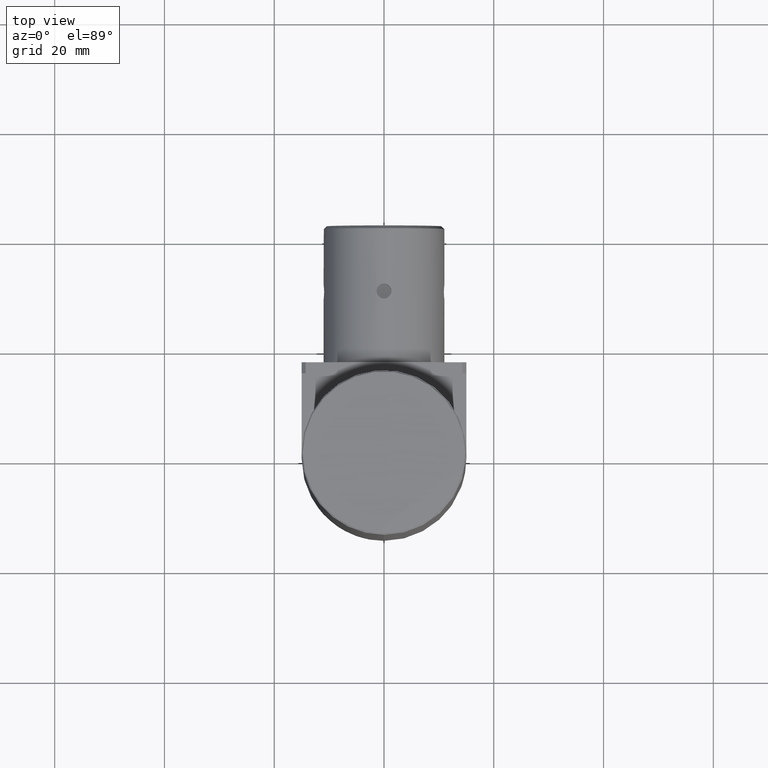
[diagram: clean part render]
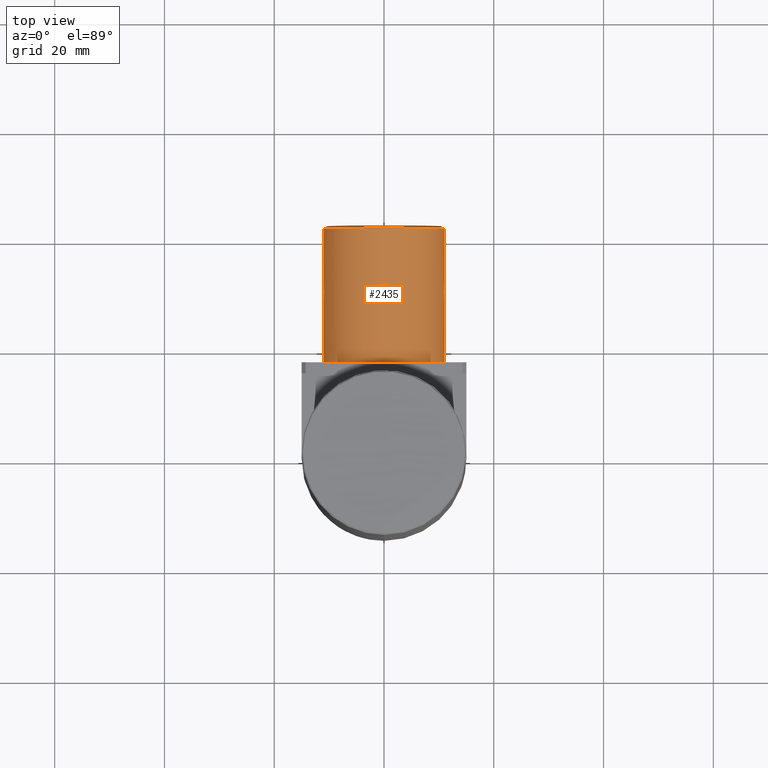
[diagram: same view with one face highlighted and labeled with its STEP entity id]
A machine part, top view. The second image highlights one B-rep face of the part: STEP entity #2435.
In plain terms, the highlighted cylindrical surface (bore or boss wall) has radius 11 mm, axis along (0, -1, 0).
Its self-contained STEP definition (entity closure, byte-faithful):
#15 = CARTESIAN_POINT ( 'NONE',  ( -0.6809353065589855980, 31.17903287935563839, -97.48487818203304300 ) ) ;
#16 = DIRECTION ( 'NONE',  ( 1.000000000000000000, 0.000000000000000000, 0.000000000000000000 ) ) ;
#32 = CARTESIAN_POINT ( 'NONE',  ( -0.3541504863508800893, 31.31467606572821438, -97.46948594034201108 ) ) ;
#88 = FACE_OUTER_BOUND ( 'NONE', #1838, .T. ) ;
#156 = CARTESIAN_POINT ( 'NONE',  ( -10.91683870179843296, 29.82146534591310427, -107.1150000000000801 ) ) ;
#163 = B_SPLINE_CURVE_WITH_KNOTS ( 'NONE', 3,
 ( #2375, #3620, #819, #2074, #521, #3132, #2498, #2513, #1562, #2227, #1540, #4026, #2765, #1866, #3753, #3113, #337, #2842, #1580, #3149, #2536, #3776, #2480, #1266, #579, #1906, #353, #2459, #3699, #2188, #598, #3434, #961, #3415, #3093, #639, #2824, #3075, #15, #32, #1829, #1251 ),
 .UNSPECIFIED., .T., .F.,
 ( 4, 2, 2, 2, 2, 2, 2, 2, 2, 2, 2, 2, 2, 2, 2, 2, 2, 2, 2, 2, 4 ),
 ( 0.000000000000000000, 0.0005279663959711862259, 0.0007919495939567811277, 0.001055932791942376138, 0.001583899187913571146, 0.002111865583884766587, 0.002375848781870368645, 0.002639831979855971570, 0.003167798375827168746, 0.003695764771798366356, 0.004223731167769563533, 0.004751697563740760709, 0.005015680761726358863, 0.005279663959711955283, 0.005807630355683158531, 0.006335596751654362646, 0.006599579949639970342, 0.006863563147625577170, 0.007391529543596788224, 0.007919495939568001880, 0.008447462335539213801 ),
 .UNSPECIFIED. ) ;
#175 = CARTESIAN_POINT ( 'NONE',  ( -10.94757805814692553, 29.17065222668563251, -109.5450021450247959 ) ) ;
#178 = EDGE_CURVE ( 'NONE', #3896, #3896, #2612, .T. ) ;
#179 = CARTESIAN_POINT ( 'NONE',  ( 1.079018589743971912, 29.16983145168091340, -119.4126629282799570 ) ) ;
#189 = CARTESIAN_POINT ( 'NONE',  ( 10.92137455536929025, 29.64584574164114983, -107.1503250842802260 ) ) ;
#197 = CARTESIAN_POINT ( 'NONE',  ( -10.92134760735822852, 30.35371849024676294, -109.7797953984036496 ) ) ;
#210 = VERTEX_POINT ( 'NONE', #287 ) ;
#218 = CARTESIAN_POINT ( 'NONE',  ( -10.94757508228454235, 30.82303601725227793, -109.5387272144720328 ) ) ;
#251 = CARTESIAN_POINT ( 'NONE',  ( 10.99478211773950065, 31.30686473365883060, -108.8148616599059011 ) ) ;
#279 = CARTESIAN_POINT ( 'NONE',  ( -0.8293500604341753624, 28.92000472457953464, -119.4344179434733206 ) ) ;
#287 = CARTESIAN_POINT ( 'NONE',  ( 10.91685086272545924, 30.00000121073016146, -107.1149999999999949 ) ) ;
#332 = DIRECTION ( 'NONE',  ( 1.000000000000000000, 0.000000000000000000, 0.000000000000000000 ) ) ;
#337 = CARTESIAN_POINT ( 'NONE',  ( 1.081085469769934138, 29.17205709172024086, -97.51752407771627418 ) ) ;
#353 = CARTESIAN_POINT ( 'NONE',  ( -0.8924150918651032605, 28.98323089235750416, -97.50108271081103339 ) ) ;
#388 = AXIS2_PLACEMENT_3D ( 'NONE', #3673, #2433, #332 ) ;
#420 = CARTESIAN_POINT ( 'NONE',  ( 0.8293606158755697511, 31.07999897219899310, -119.4344180688657815 ) ) ;
#425 = ORIENTED_EDGE ( 'NONE', *, *, #178, .T. ) ;
#443 = CARTESIAN_POINT ( 'NONE',  ( -0.3537113524446718893, 31.31479681953143412, -119.4605287740052404 ) ) ;
#479 = CARTESIAN_POINT ( 'NONE',  ( -10.98017617729679607, 28.82043239984992056, -107.7852775623738069 ) ) ;
#482 = CARTESIAN_POINT ( 'NONE',  ( 0.6763694007535721031, 28.82833180206026213, -119.4444324103227473 ) ) ;
#490 = CARTESIAN_POINT ( 'NONE',  ( 10.93753823479360143, 30.67636105270732827, -107.2933286236178816 ) ) ;
#500 = CARTESIAN_POINT ( 'NONE',  ( -10.98017624436068296, 31.17957063234722170, -109.1447212944634089 ) ) ;
#521 = CARTESIAN_POINT ( 'NONE',  ( 0.6763694007535760999, 31.17167061940005368, -97.48556758967741587 ) ) ;
#523 = CARTESIAN_POINT ( 'NONE',  ( -10.99173181990423487, 31.28137951266941741, -108.0309504819440463 ) ) ;
#524 = DIRECTION ( 'NONE',  ( -6.538695102331599470E-17, 1.000000000000000000, -1.656432020930319772E-17 ) ) ;
#535 = CARTESIAN_POINT ( 'NONE',  ( 10.99547896475943531, 28.68569375685225964, -108.8199661606996500 ) ) ;
#544 = CARTESIAN_POINT ( 'NONE',  ( -1.350057501085846212, 29.91285853183527266, -119.3818369196358731 ) ) ;
#553 = CARTESIAN_POINT ( 'NONE',  ( 10.99999035837701200, 31.34987310480702405, -108.2877761941945067 ) ) ;
#572 = EDGE_CURVE ( 'NONE', #874, #874, #163, .T. ) ;
#579 = CARTESIAN_POINT ( 'NONE',  ( -0.6763592638263291601, 28.82833298060322846, -97.48556771564535950 ) ) ;
#598 = CARTESIAN_POINT ( 'NONE',  ( -1.349865690437213495, 29.82277738341337070, -97.54813936066211966 ) ) ;
#623 = EDGE_LOOP ( 'NONE', ( #3609 ) ) ;
#639 = CARTESIAN_POINT ( 'NONE',  ( -1.179948496236552513, 30.67935681771447065, -97.52825739880766776 ) ) ;
#655 = ORIENTED_EDGE ( 'NONE', *, *, #572, .T. ) ;
#701 = CARTESIAN_POINT ( 'NONE',  ( 1.179576586588630516, 29.32028218550923881, -119.4017824788959672 ) ) ;
#723 = CARTESIAN_POINT ( 'NONE',  ( 1.306869997533240957, 30.34986137232417391, -119.3871063679330291 ) ) ;
#736 = EDGE_LOOP ( 'NONE', ( #425 ) ) ;
#757 = CARTESIAN_POINT ( 'NONE',  ( -10.93683710821484034, 30.68093855392699965, -107.2859662579263613 ) ) ;
#758 = DIRECTION ( 'NONE',  ( 1.000000000000000000, 0.000000000000000000, 0.000000000000000000 ) ) ;
#773 = CARTESIAN_POINT ( 'NONE',  ( 10.99999035840571793, 28.65012931641933136, -108.6422234823797197 ) ) ;
#780 = CARTESIAN_POINT ( 'NONE',  ( -10.93294734213189301, 29.40114148979044018, -107.2518665445911239 ) ) ;
#782 = EDGE_CURVE ( 'NONE', #210, #210, #3856, .T. ) ;
#793 = CARTESIAN_POINT ( 'NONE',  ( 10.91685079842847550, 30.17853272686685173, -109.8150005199410799 ) ) ;
#800 = CARTESIAN_POINT ( 'NONE',  ( -10.91683876609686976, 30.17854059004729450, -109.8149994800475326 ) ) ;
#813 = CARTESIAN_POINT ( 'NONE',  ( 10.98018833822383122, 31.17957002161040947, -107.7852775623737642 ) ) ;
#819 = CARTESIAN_POINT ( 'NONE',  ( 0.3537206217234935002, 31.31479764249687392, -97.46947112641080935 ) ) ;
#822 = CARTESIAN_POINT ( 'NONE',  ( -10.93752621321244867, 30.67636328314061345, -109.6366700776453769 ) ) ;
#835 = VERTEX_POINT ( 'NONE', #1184 ) ;
#836 = CARTESIAN_POINT ( 'NONE',  ( 10.99547894764385525, 31.31430853356837574, -108.1100331945830106 ) ) ;
#848 = CARTESIAN_POINT ( 'NONE',  ( -0.6763592638263313805, 31.17166944085707669, -119.4444322843548321 ) ) ;
#855 = VERTEX_POINT ( 'NONE', #3389 ) ;
#856 = CARTESIAN_POINT ( 'NONE',  ( 10.99892837474820340, 31.34130050373534715, -108.6416682065836312 ) ) ;
#858 = EDGE_CURVE ( 'NONE', #855, #855, #1691, .T. ) ;
#874 = VERTEX_POINT ( 'NONE', #3937 ) ;
#961 = CARTESIAN_POINT ( 'NONE',  ( -1.341293410822554266, 30.17666778812274941, -97.54706903837166010 ) ) ;
#1028 = CARTESIAN_POINT ( 'NONE',  ( 1.341305542207329005, 30.17666808463463113, -119.3829309653481516 ) ) ;
#1064 = CARTESIAN_POINT ( 'NONE',  ( -10.94757494501890172, 29.17696821118677164, -107.3912713882293275 ) ) ;
#1102 = CARTESIAN_POINT ( 'NONE',  ( 10.93684912041792145, 30.68093626333267920, -109.6440351074097634 ) ) ;
#1108 = CARTESIAN_POINT ( 'NONE',  ( -10.99173179055597593, 28.71862315731605975, -108.8990502862683627 ) ) ;
#1122 = CARTESIAN_POINT ( 'NONE',  ( 10.95309098222628030, 29.10758424472301442, -109.4817739930037419 ) ) ;
#1130 = CARTESIAN_POINT ( 'NONE',  ( -1.314301185325380317, 30.35496718162571739, -119.3864098884267690 ) ) ;
#1151 = CARTESIAN_POINT ( 'NONE',  ( -0.8924150918651068132, 31.01677152910280810, -119.4289172891891013 ) ) ;
#1162 = CARTESIAN_POINT ( 'NONE',  ( 10.91685086272546101, 29.82146534591306164, -107.1149999999999949 ) ) ;
#1184 = CARTESIAN_POINT ( 'NONE',  ( -10.91683870179843474, 30.00000121073015436, -107.1150000000000801 ) ) ;
#1195 = CARTESIAN_POINT ( 'NONE',  ( -0.3541504863508831424, 28.68532635573210143, -119.4605140596581379 ) ) ;
#1251 = CARTESIAN_POINT ( 'NONE',  ( 6.080463520015334973E-06, 31.35000121073015222, -97.46500000000006025 ) ) ;
#1266 = CARTESIAN_POINT ( 'NONE',  ( -0.5988586952571574029, 28.78687019586918439, -97.48100922974808213 ) ) ;
#1354 = VERTEX_POINT ( 'NONE', #1932 ) ;
#1374 = CARTESIAN_POINT ( 'NONE',  ( -11.00000171529200976, 28.64993768974262522, -108.5521440832155662 ) ) ;
#1377 = CARTESIAN_POINT ( 'NONE',  ( 1.179960094813562010, 30.67935787452073626, -119.4017426632686494 ) ) ;
#1415 = CARTESIAN_POINT ( 'NONE',  ( -10.93683695949087920, 29.31906615812762951, -109.6440351074097777 ) ) ;
#1438 = CARTESIAN_POINT ( 'NONE',  ( -10.92136228758582561, 29.64584884819046451, -109.7796757906325666 ) ) ;
#1441 = CARTESIAN_POINT ( 'NONE',  ( -1.306857979096665012, 29.65014161786213620, -119.3871063507932604 ) ) ;
#1458 = CARTESIAN_POINT ( 'NONE',  ( -10.99891621382117357, 28.65870191772498643, -108.6416682065836454 ) ) ;
#1472 = CARTESIAN_POINT ( 'NONE',  ( 10.91685086272546279, 30.00000121073016146, -107.1150000000000233 ) ) ;
#1485 = AXIS2_PLACEMENT_3D ( 'NONE', #2378, #524, #758 ) ;
#1495 = CARTESIAN_POINT ( 'NONE',  ( 10.94759021907396779, 30.82935019477471172, -109.5450021450247391 ) ) ;
#1540 = CARTESIAN_POINT ( 'NONE',  ( 1.349877851151696895, 30.17722533153598974, -97.54813936063577273 ) ) ;
#1562 = CARTESIAN_POINT ( 'NONE',  ( 1.179576586588633402, 30.67972023595107345, -97.52821752110415332 ) ) ;
#1580 = CARTESIAN_POINT ( 'NONE',  ( 0.6809453888898615581, 28.82096830312299574, -97.48487804763162501 ) ) ;
#1657 = CARTESIAN_POINT ( 'NONE',  ( 6.080463516065004547E-06, 42.00000121073015436, -108.4650000000000460 ) ) ;
#1665 = CARTESIAN_POINT ( 'NONE',  ( 0.6809453888898570062, 31.17903411833732008, -119.4451219523685239 ) ) ;
#1686 = CARTESIAN_POINT ( 'NONE',  ( -0.5988586952571604005, 31.21313222559111367, -119.4489907702519957 ) ) ;
#1688 = EDGE_LOOP ( 'NONE', ( #3771 ) ) ;
#1691 = CIRCLE ( 'NONE', #388, 10.99999999999999645 ) ;
#1704 = CARTESIAN_POINT ( 'NONE',  ( -10.96952007849645483, 28.91892516461316376, -109.2929486415870741 ) ) ;
#1708 = EDGE_LOOP ( 'NONE', ( #655 ) ) ;
#1717 = CARTESIAN_POINT ( 'NONE',  ( 10.94758710594592088, 30.82303421027354062, -107.3912713882292707 ) ) ;
#1724 = CARTESIAN_POINT ( 'NONE',  ( -10.99476995681245839, 28.69313768780147811, -108.8148616599059721 ) ) ;
#1727 = CARTESIAN_POINT ( 'NONE',  ( 0.8230431185521875914, 28.92627565073779294, -119.4344126291161245 ) ) ;
#1737 = CARTESIAN_POINT ( 'NONE',  ( 10.94759035749618370, 29.17065045743767726, -107.3849992603610133 ) ) ;
#1745 = CARTESIAN_POINT ( 'NONE',  ( -10.99546680383239661, 31.31430866460807039, -108.8199661606997068 ) ) ;
#1748 = CARTESIAN_POINT ( 'NONE',  ( -1.079007293805578138, 30.83016978079561454, -119.4126628387132030 ) ) ;
#1760 = CARTESIAN_POINT ( 'NONE',  ( 11.00001387620469195, 28.64993768985961964, -108.3778560785027878 ) ) ;
#1767 = CARTESIAN_POINT ( 'NONE',  ( -10.98021592092028165, 31.17995389150693342, -107.7856407295478363 ) ) ;
#1781 = CARTESIAN_POINT ( 'NONE',  ( 10.99892837881435348, 28.65870188516931094, -108.2883321201718871 ) ) ;
#1813 = CARTESIAN_POINT ( 'NONE',  ( -1.081074218473929260, 29.17205833480710808, -119.4124758284404635 ) ) ;
#1829 = CARTESIAN_POINT ( 'NONE',  ( -0.1785295425112811973, 31.35000121073015222, -97.46500000000004604 ) ) ;
#1836 = CARTESIAN_POINT ( 'NONE',  ( -1.341293410822558041, 29.82333463333756640, -119.3829309616284888 ) ) ;
#1838 = EDGE_LOOP ( 'NONE', ( #2507 ) ) ;
#1866 = CARTESIAN_POINT ( 'NONE',  ( 1.306869997533244065, 29.65014104913612414, -97.54289363206709140 ) ) ;
#1906 = CARTESIAN_POINT ( 'NONE',  ( -0.8230325973521225302, 28.92627691871448548, -97.49558749519802348 ) ) ;
#1932 = CARTESIAN_POINT ( 'NONE',  ( 11.00000608046351402, 17.00000121073015791, -108.4650000000000460 ) ) ;
#1957 = CARTESIAN_POINT ( 'NONE',  ( 1.349877851151693786, 29.82277708992432252, -119.3818606393643904 ) ) ;
#1992 = CARTESIAN_POINT ( 'NONE',  ( -10.99546678671682187, 28.68569388789194363, -108.1100331945831243 ) ) ;
#1995 = CARTESIAN_POINT ( 'NONE',  ( -0.1785327317219848331, 31.35000073890564920, -119.4649999420943089 ) ) ;
#2013 = ORIENTED_EDGE ( 'NONE', *, *, #2202, .T. ) ;
#2014 = CARTESIAN_POINT ( 'NONE',  ( -10.91683870179843474, 30.00000121073016146, -107.1150000000000801 ) ) ;
#2031 = CARTESIAN_POINT ( 'NONE',  ( 10.99174395148301642, 31.28137926414428094, -108.8990502862682916 ) ) ;
#2036 = CARTESIAN_POINT ( 'NONE',  ( -10.96933313068594451, 28.92099262114856373, -107.6348252242607941 ) ) ;
#2039 = CARTESIAN_POINT ( 'NONE',  ( 0.3537206217234885042, 28.68520477896343834, -119.4605288735892827 ) ) ;
#2048 = CARTESIAN_POINT ( 'NONE',  ( 10.96934539008067588, 28.92099166791410525, -109.2951734654735247 ) ) ;
#2055 = CARTESIAN_POINT ( 'NONE',  ( -10.96933322915363718, 31.07901075354620701, -109.2951734654735390 ) ) ;
#2074 = CARTESIAN_POINT ( 'NONE',  ( 0.5988686279125526868, 31.21313333778151033, -97.48100910661700880 ) ) ;
#2078 = CARTESIAN_POINT ( 'NONE',  ( -10.99997819747868810, 31.34987310504097024, -108.6422234823797766 ) ) ;
#2093 = CARTESIAN_POINT ( 'NONE',  ( 10.98018840528771278, 28.82043178911310122, -109.1447212944632810 ) ) ;
#2103 = CARTESIAN_POINT ( 'NONE',  ( -0.8230325973521245286, 31.07372550274582679, -119.4344125048020686 ) ) ;
#2142 = CIRCLE ( 'NONE', #1485, 10.99999999999999645 ) ;
#2143 = CARTESIAN_POINT ( 'NONE',  ( -1.179564979860594054, 30.67971919860834262, -119.4017824177669524 ) ) ;
#2188 = CARTESIAN_POINT ( 'NONE',  ( -1.314301185325377874, 29.64503523983458777, -97.54359011157339410 ) ) ;
#2202 = EDGE_CURVE ( 'NONE', #835, #835, #3412, .T. ) ;
#2227 = CARTESIAN_POINT ( 'NONE',  ( 1.314313227342275070, 30.35496776666319008, -97.54359009590488938 ) ) ;
#2297 = CARTESIAN_POINT ( 'NONE',  ( -10.99997819744997862, 28.65012931665330953, -108.2877761941945636 ) ) ;
#2300 = CARTESIAN_POINT ( 'NONE',  ( 0.8924258209454959401, 28.98322962241547174, -119.4289174068123600 ) ) ;
#2315 = CARTESIAN_POINT ( 'NONE',  ( -10.92136239444226575, 30.35415667981918730, -107.1503250842802970 ) ) ;
#2331 = CARTESIAN_POINT ( 'NONE',  ( 10.92135965777532292, 30.35371530368465187, -107.1502036946997123 ) ) ;
#2338 = CARTESIAN_POINT ( 'NONE',  ( 0.1785417034383081913, 28.65000121073016359, -119.4650000000000460 ) ) ;
#2375 = CARTESIAN_POINT ( 'NONE',  ( 6.080463520015334973E-06, 31.35000121073015222, -97.46500000000006025 ) ) ;
#2378 = CARTESIAN_POINT ( 'NONE',  ( 6.080463517699678185E-06, 17.00000121073015791, -108.4650000000000460 ) ) ;
#2391 = CARTESIAN_POINT ( 'NONE',  ( 10.92135976828526367, 29.64628393121356709, -109.7797953984034649 ) ) ;
#2404 = CARTESIAN_POINT ( 'NONE',  ( 6.080463515922471772E-06, 28.65000121073015649, -119.4650000000000460 ) ) ;
#2433 = DIRECTION ( 'NONE',  ( 6.538695102331599470E-17, -1.000000000000000000, 1.656432020930319772E-17 ) ) ;
#2435 = ADVANCED_FACE ( 'NONE', ( #3436, #2557, #88, #2882, #3209, #3474 ), #2500, .T. ) ;
#2459 = CARTESIAN_POINT ( 'NONE',  ( -1.079007293805573475, 29.16983264066467996, -97.51733716128686069 ) ) ;
#2480 = CARTESIAN_POINT ( 'NONE',  ( -0.3537113524446678925, 28.68520560192889235, -97.46947122599486590 ) ) ;
#2498 = CARTESIAN_POINT ( 'NONE',  ( 0.8924258209455007140, 31.01677279904483697, -97.50108259318767523 ) ) ;
#2500 = CYLINDRICAL_SURFACE ( 'NONE', #3881, 10.99999999999999645 ) ;
#2507 = ORIENTED_EDGE ( 'NONE', *, *, #3270, .T. ) ;
#2513 = CARTESIAN_POINT ( 'NONE',  ( 1.079018589743975909, 30.83017096977938820, -97.51733707172009247 ) ) ;
#2536 = CARTESIAN_POINT ( 'NONE',  ( 0.1785377572877218377, 28.65000073891506815, -97.46499994209547424 ) ) ;
#2557 = FACE_BOUND ( 'NONE', #1708, .T. ) ;
#2585 = CARTESIAN_POINT ( 'NONE',  ( 0.5988686279125494671, 28.78686908367878061, -119.4489908933830975 ) ) ;
#2612 = B_SPLINE_CURVE_WITH_KNOTS ( 'NONE', 3,
 ( #3848, #2338, #2039, #2585, #482, #1727, #2300, #179, #701, #2890, #1957, #3827, #1028, #723, #2932, #1377, #3219, #420, #1665, #2911, #3544, #1995, #443, #1686, #848, #2103, #1151, #1748, #2143, #1130, #2771, #544, #1836, #1441, #3081, #3017, #1813, #279, #3995, #1195, #2997, #2404 ),
 .UNSPECIFIED., .T., .F.,
 ( 4, 2, 2, 2, 2, 2, 2, 2, 2, 2, 2, 2, 2, 2, 2, 2, 2, 2, 2, 2, 4 ),
 ( 0.000000000000000000, 0.0005279663959711872016, 0.0007919495939567810193, 0.001055932791942374837, 0.001583899187913559653, 0.002111865583884744470, 0.002375848781870342624, 0.002639831979855939478, 0.003167798375827145761, 0.003695764771798352478, 0.004223731167769562665, 0.004751697563740772852, 0.005015680761726377945, 0.005279663959711983039, 0.005807630355683188889, 0.006335596751654394738, 0.006599579949639998097, 0.006863563147625600588, 0.007391529543596804704, 0.007919495939568007084, 0.008447462335539212067 ),
 .UNSPECIFIED. ) ;
#2656 = CARTESIAN_POINT ( 'NONE',  ( 10.91685092702391557, 29.82146183141301066, -109.8149994800474616 ) ) ;
#2686 = CARTESIAN_POINT ( 'NONE',  ( -10.99891621788731833, 31.34130053629102974, -108.2883321201719440 ) ) ;
#2704 = CARTESIAN_POINT ( 'NONE',  ( -10.95307869156136427, 29.10758582261446037, -107.4482246075360479 ) ) ;
#2718 = CARTESIAN_POINT ( 'NONE',  ( 10.96934529161296901, 31.07900980031174498, -107.6348252242607089 ) ) ;
#2765 = CARTESIAN_POINT ( 'NONE',  ( 1.341305542207332335, 29.82333433682567758, -97.54706903465196888 ) ) ;
#2771 = CARTESIAN_POINT ( 'NONE',  ( -1.349865690437217491, 30.17722503804694867, -119.3818606393380151 ) ) ;
#2824 = CARTESIAN_POINT ( 'NONE',  ( -1.081074218473925708, 30.82794408665318642, -97.51752417155962860 ) ) ;
#2842 = CARTESIAN_POINT ( 'NONE',  ( 0.8293606158755726376, 28.92000344926132271, -97.49558193113432480 ) ) ;
#2882 = FACE_BOUND ( 'NONE', #623, .T. ) ;
#2890 = CARTESIAN_POINT ( 'NONE',  ( 1.314313227342272183, 29.64503465479711508, -119.3864099040951885 ) ) ;
#2911 = CARTESIAN_POINT ( 'NONE',  ( 0.3541598282435099443, 31.31467685966952885, -119.4605141559446082 ) ) ;
#2929 = CARTESIAN_POINT ( 'NONE',  ( -10.94757819656915210, 30.82935196402264921, -107.3849992603610417 ) ) ;
#2932 = CARTESIAN_POINT ( 'NONE',  ( 1.281384749267179046, 30.43404953210618302, -119.3901648315607105 ) ) ;
#2960 = CARTESIAN_POINT ( 'NONE',  ( 10.92137444851286077, 30.35415357326984775, -109.7796757906324387 ) ) ;
#2984 = CARTESIAN_POINT ( 'NONE',  ( 10.93684926914187017, 29.31906386753331972, -107.2859662579262618 ) ) ;
#2992 = CARTESIAN_POINT ( 'NONE',  ( -11.00000171527766391, 31.35006473160069262, -108.3778560785028873 ) ) ;
#2997 = CARTESIAN_POINT ( 'NONE',  ( -0.1785295425112820300, 28.65000121073015293, -119.4650000000000603 ) ) ;
#3014 = CARTESIAN_POINT ( 'NONE',  ( -10.91683870179843474, 30.00000121073016146, -107.1150000000000801 ) ) ;
#3017 = CARTESIAN_POINT ( 'NONE',  ( -1.179948496236557620, 29.32064560374583806, -119.4017426011924385 ) ) ;
#3026 = CARTESIAN_POINT ( 'NONE',  ( 10.98022808184730970, 28.82004852995338240, -107.7856407295477368 ) ) ;
#3049 = CARTESIAN_POINT ( 'NONE',  ( 10.98022801374539803, 31.17995327178722320, -109.1443604350642858 ) ) ;
#3075 = CARTESIAN_POINT ( 'NONE',  ( -0.8293500604341712545, 31.07999769688077762, -97.49558205652684251 ) ) ;
#3081 = CARTESIAN_POINT ( 'NONE',  ( -1.281372813859622983, 29.56595358645679994, -119.3901648047586548 ) ) ;
#3093 = CARTESIAN_POINT ( 'NONE',  ( -1.281372813859618542, 30.43404883500351943, -97.53983519524145152 ) ) ;
#3113 = CARTESIAN_POINT ( 'NONE',  ( 1.179960094813564453, 29.32064454693956534, -97.52825733673144271 ) ) ;
#3132 = CARTESIAN_POINT ( 'NONE',  ( 0.8230431185521918103, 31.07372677072250156, -97.49558737088393912 ) ) ;
#3149 = CARTESIAN_POINT ( 'NONE',  ( 0.3541598282435142742, 28.68532556179078341, -97.46948584405545546 ) ) ;
#3189 = DIRECTION ( 'NONE',  ( 6.538695102331599470E-17, -1.000000000000000000, 1.656432020930319772E-17 ) ) ;
#3209 = FACE_BOUND ( 'NONE', #736, .T. ) ;
#3219 = CARTESIAN_POINT ( 'NONE',  ( 1.081085469769932805, 30.82794532974006430, -119.4124759222838179 ) ) ;
#3227 = CARTESIAN_POINT ( 'NONE',  ( 6.080463515975053036E-06, 28.65000121073015649, -119.4650000000000460 ) ) ;
#3236 = CARTESIAN_POINT ( 'NONE',  ( -10.95307882129923449, 30.89241817673730495, -109.4817739930037561 ) ) ;
#3270 = EDGE_CURVE ( 'NONE', #1354, #1354, #2142, .T. ) ;
#3272 = CARTESIAN_POINT ( 'NONE',  ( 10.96953234259783194, 28.91892416217704564, -107.6370527283097545 ) ) ;
#3288 = CARTESIAN_POINT ( 'NONE',  ( 10.93295950305891928, 30.59886093166989340, -107.2518665445910671 ) ) ;
#3295 = CARTESIAN_POINT ( 'NONE',  ( -10.93752607386657871, 29.32364136875299110, -107.2933286236179242 ) ) ;
#3310 = CARTESIAN_POINT ( 'NONE',  ( 10.91685086272546457, 30.17853707554722931, -107.1150000000000517 ) ) ;
#3316 = CARTESIAN_POINT ( 'NONE',  ( -10.99476997557297864, 31.30686489068461142, -108.1151389668328164 ) ) ;
#3330 = CARTESIAN_POINT ( 'NONE',  ( 11.00001387621904847, 31.35006473171769059, -108.5521440832154951 ) ) ;
#3336 = EDGE_LOOP ( 'NONE', ( #2013 ) ) ;
#3350 = CARTESIAN_POINT ( 'NONE',  ( 10.96953223942349354, 31.08107725684715561, -109.2929486415870173 ) ) ;
#3389 = CARTESIAN_POINT ( 'NONE',  ( 11.00000608046351225, 41.50000121073015436, -108.4650000000000460 ) ) ;
#3412 = B_SPLINE_CURVE_WITH_KNOTS ( 'NONE', 3,
 ( #3014, #156, #3582, #780, #3295, #1064, #2704, #2036, #479, #1992, #2297, #1374, #1458, #1724, #1108, #3622, #1704, #175, #1415, #1438, #3602, #800, #197, #3863, #822, #218, #3236, #2055, #500, #1745, #2078, #2992, #2686, #3316, #523, #1767, #3541, #2929, #757, #2315, #3559, #2014 ),
 .UNSPECIFIED., .T., .F.,
 ( 4, 2, 2, 2, 2, 2, 2, 2, 2, 2, 2, 2, 2, 2, 2, 2, 2, 2, 2, 2, 4 ),
 ( 0.000000000000000000, 0.0005279662138922307972, 0.0007919493208383492858, 0.001055932427784467666, 0.001583898641676697704, 0.002111864855568927526, 0.002375847962515022053, 0.002639831069461116148, 0.003167797283353300866, 0.003695763497245486019, 0.004223729711137670303, 0.004751695925029855889, 0.005015679031975947381, 0.005279662138922039741, 0.005807628352814195836, 0.006335594566706346728, 0.006599577673652400923, 0.006863560780598456854, 0.007391526994490573918, 0.007919493208382690982, 0.008447459422274808047 ),
 .UNSPECIFIED. ) ;
#3415 = CARTESIAN_POINT ( 'NONE',  ( -1.306857979096661238, 30.34986080359816896, -97.54289364920681749 ) ) ;
#3434 = CARTESIAN_POINT ( 'NONE',  ( -1.350057501085842881, 30.08714388962501474, -97.54816308036420480 ) ) ;
#3436 = FACE_OUTER_BOUND ( 'NONE', #1688, .T. ) ;
#3474 = FACE_BOUND ( 'NONE', #3336, .T. ) ;
#3541 = CARTESIAN_POINT ( 'NONE',  ( -10.96952018167080034, 31.08107825928328083, -107.6370527283098255 ) ) ;
#3544 = CARTESIAN_POINT ( 'NONE',  ( 0.1785377572877170915, 31.35000168254524411, -119.4650000579046463 ) ) ;
#3559 = CARTESIAN_POINT ( 'NONE',  ( -10.91683870179843652, 30.17853707554718312, -107.1150000000000801 ) ) ;
#3573 = CARTESIAN_POINT ( 'NONE',  ( 10.99478213649999958, 28.69313753077569373, -108.1151389668327027 ) ) ;
#3582 = CARTESIAN_POINT ( 'NONE',  ( -10.92134749684829487, 29.64628711777568881, -107.1502036946997833 ) ) ;
#3596 = CARTESIAN_POINT ( 'NONE',  ( 10.93295963938701298, 29.40113903425662656, -109.6781322297929080 ) ) ;
#3602 = CARTESIAN_POINT ( 'NONE',  ( -10.91683863750143679, 29.82146969459346408, -109.8150005199411936 ) ) ;
#3609 = ORIENTED_EDGE ( 'NONE', *, *, #782, .T. ) ;
#3615 = CARTESIAN_POINT ( 'NONE',  ( 10.95309085248838876, 30.89241659884585545, -107.4482246075359200 ) ) ;
#3620 = CARTESIAN_POINT ( 'NONE',  ( 0.1785417034383123547, 31.35000121073015222, -97.46500000000007446 ) ) ;
#3622 = CARTESIAN_POINT ( 'NONE',  ( -10.98021585281835932, 28.82004914967309617, -109.1443604350643852 ) ) ;
#3637 = CARTESIAN_POINT ( 'NONE',  ( 10.93753837413949626, 29.32363913831971658, -109.6366700776452916 ) ) ;
#3673 = CARTESIAN_POINT ( 'NONE',  ( 6.080463516097698325E-06, 41.50000121073015436, -108.4650000000000460 ) ) ;
#3699 = CARTESIAN_POINT ( 'NONE',  ( -1.179564979860590723, 29.32028322285196253, -97.52821758223312543 ) ) ;
#3753 = CARTESIAN_POINT ( 'NONE',  ( 1.281384749267183043, 29.56595288935411858, -97.53983516843936741 ) ) ;
#3771 = ORIENTED_EDGE ( 'NONE', *, *, #858, .T. ) ;
#3776 = CARTESIAN_POINT ( 'NONE',  ( -0.1785327317219810028, 28.65000168255467017, -97.46500005790575472 ) ) ;
#3827 = CARTESIAN_POINT ( 'NONE',  ( 1.350069662119161906, 30.08714403637393886, -119.3818369196227991 ) ) ;
#3848 = CARTESIAN_POINT ( 'NONE',  ( 6.080463515922471772E-06, 28.65000121073015649, -119.4650000000000460 ) ) ;
#3856 = B_SPLINE_CURVE_WITH_KNOTS ( 'NONE', 3,
 ( #1472, #3310, #2331, #3288, #490, #1717, #3615, #2718, #813, #836, #553, #3330, #856, #251, #2031, #3049, #3350, #1495, #1102, #2960, #793, #2656, #2391, #3596, #3637, #3962, #1122, #2048, #2093, #535, #773, #1760, #1781, #3573, #3898, #3026, #3272, #1737, #2984, #189, #1162, #3919 ),
 .UNSPECIFIED., .T., .F.,
 ( 4, 2, 2, 2, 2, 2, 2, 2, 2, 2, 2, 2, 2, 2, 2, 2, 2, 2, 2, 2, 4 ),
 ( 0.000000000000000000, 0.0005279662138921146792, 0.0007919493208381845955, 0.001055932427784254729, 0.001583898641676394128, 0.002111864855568533744, 0.002375847962514624368, 0.002639831069460714993, 0.003167797283352899711, 0.003695763497245084864, 0.004223729711137269582, 0.004751695925029455168, 0.005015679031975543191, 0.005279662138921631213, 0.005807628352813799452, 0.006335594566705966824, 0.006599577673652073061, 0.006863560780598178430, 0.007391526994490387435, 0.007919493208382597307, 0.008447459422274808047 ),
 .UNSPECIFIED. ) ;
#3863 = CARTESIAN_POINT ( 'NONE',  ( -10.93294747845996540, 30.59886338720368926, -109.6781322297929933 ) ) ;
#3881 = AXIS2_PLACEMENT_3D ( 'NONE', #1657, #3189, #16 ) ;
#3896 = VERTEX_POINT ( 'NONE', #3227 ) ;
#3898 = CARTESIAN_POINT ( 'NONE',  ( 10.99174398083126292, 28.71862290879090196, -108.0309504819439752 ) ) ;
#3919 = CARTESIAN_POINT ( 'NONE',  ( 10.91685086272546279, 30.00000121073016146, -107.1150000000000233 ) ) ;
#3937 = CARTESIAN_POINT ( 'NONE',  ( 6.080463519981428244E-06, 31.35000121073015222, -97.46500000000004604 ) ) ;
#3962 = CARTESIAN_POINT ( 'NONE',  ( 10.94758724321158816, 29.17696640420804144, -109.5387272144719901 ) ) ;
#3995 = CARTESIAN_POINT ( 'NONE',  ( -0.6809353065589910381, 28.82096954210469164, -119.4451218179670917 ) ) ;
#4026 = CARTESIAN_POINT ( 'NONE',  ( 1.350069662119166569, 29.91285838508637696, -97.54816308037737826 ) ) ;